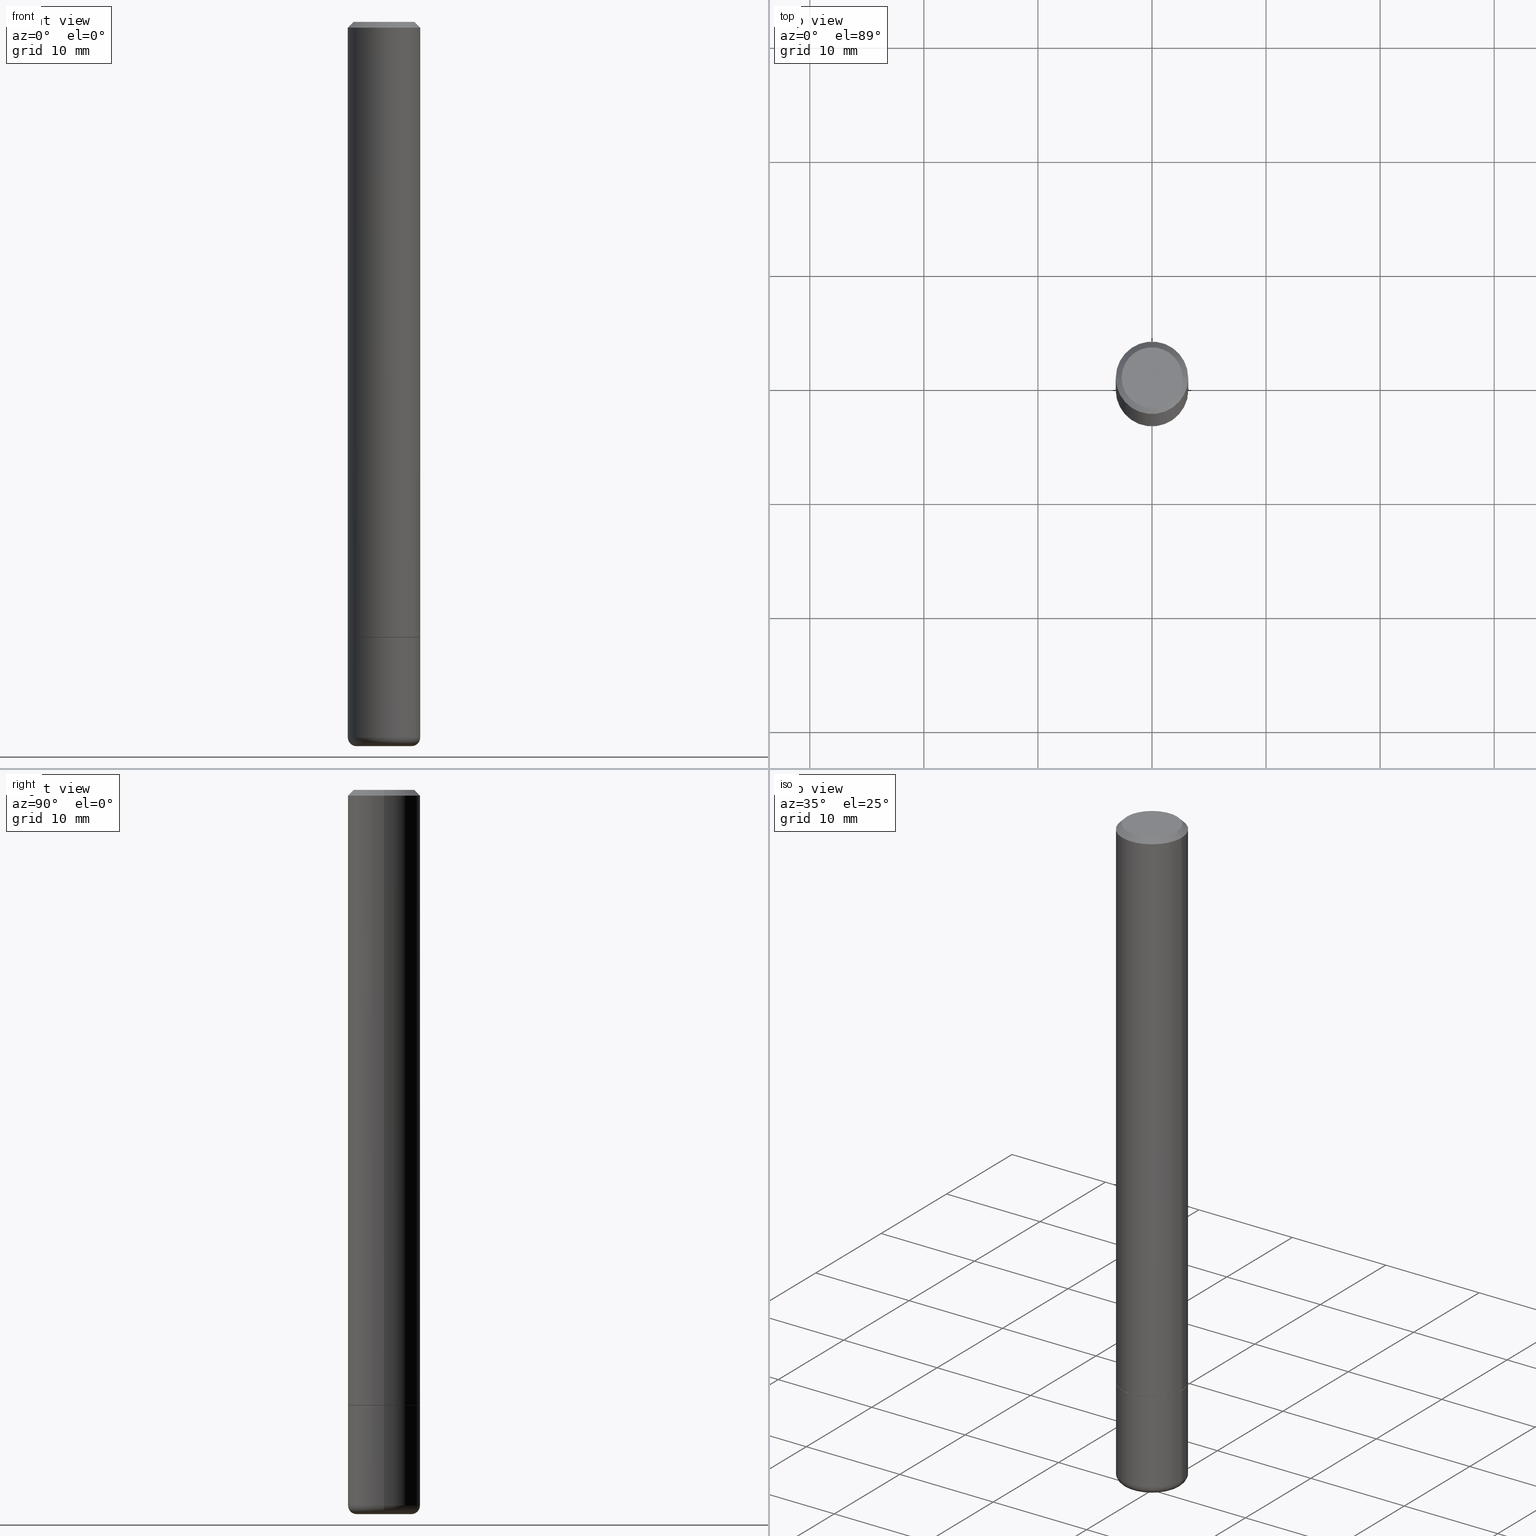
[diagram: canonical four-view strip — front | top / right | iso, engineering-drawing reading convention]
A machine part, canonical four-view strip (front | top / right | iso — engineering-drawing reading convention). The complete STEP part file that produces these views, byte-faithful:
ISO-10303-21;
HEADER;
FILE_DESCRIPTION (( 'STEP AP203' ),
    '1' );
FILE_NAME ('35667.STEP',
    '2022-11-02T20:37:11',
    ( '' ),
    ( '' ),
    'SwSTEP 2.0',
    'SolidWorks 2022',
    '' );
FILE_SCHEMA (( 'CONFIG_CONTROL_DESIGN' ));
ENDSEC;

DATA;
#1 = PERSON_AND_ORGANIZATION ( #249, #268 ) ;
#2 = ORIENTED_EDGE ( 'NONE', *, *, #455, .T. ) ;
#3 = CC_DESIGN_DATE_AND_TIME_ASSIGNMENT ( #456, #269, ( #178 ) ) ;
#4 = DIRECTION ( 'NONE',  ( 0.000000000000000000, 0.000000000000000000, 1.000000000000000000 ) ) ;
#5 = CARTESIAN_POINT ( 'NONE',  ( 0.08140570393504910351, -9.286780778739024445E-15, -2.499883649035179900 ) ) ;
#6 = AXIS2_PLACEMENT_3D ( 'NONE', #353, #237, #123 ) ;
#7 = AXIS2_PLACEMENT_3D ( 'NONE', #89, #276, #239 ) ;
#8 = EDGE_CURVE ( 'NONE', #11, #471, #140, .T. ) ;
#9 = DIRECTION ( 'NONE',  ( 1.000000000000000000, -6.982962677686267499E-15, 4.874400871621268483E-29 ) ) ;
#10 = PERSON_AND_ORGANIZATION ( #249, #268 ) ;
#11 = VERTEX_POINT ( 'NONE', #305 ) ;
#12 = CYLINDRICAL_SURFACE ( 'NONE', #288, 0.1249999999999994865 ) ;
#13 = CARTESIAN_POINT ( 'NONE',  ( 6.113672015462842613E-29, -8.728703347107864943E-15, -2.500000000000000000 ) ) ;
#14 = DIRECTION ( 'NONE',  ( -1.000000000000000000, 6.982962677686265922E-15, 0.000000000000000000 ) ) ;
#15 = ORIENTED_EDGE ( 'NONE', *, *, #216, .F. ) ;
#16 = ADVANCED_FACE ( 'NONE', ( #462 ), #381, .T. ) ;
#17 = CIRCLE ( 'NONE', #29, 0.1249999999999993477 ) ;
#18 = AXIS2_PLACEMENT_3D ( 'NONE', #13, #315, #386 ) ;
#19 = PERSON_AND_ORGANIZATION_ROLE ( 'classification_officer' ) ;
#20 = DIRECTION ( 'NONE',  ( 1.000000000000000000, -6.982962677686265922E-15, 4.876176775795935793E-29 ) ) ;
#21 = DIRECTION ( 'NONE',  ( -1.000000000000000000, 6.982962677686263555E-15, 0.000000000000000000 ) ) ;
#22 = DIRECTION ( 'NONE',  ( 1.000000000000000000, -6.982962677686269077E-15, 0.000000000000000000 ) ) ;
#23 = VERTEX_POINT ( 'NONE', #167 ) ;
#24 = CC_DESIGN_PERSON_AND_ORGANIZATION_ASSIGNMENT ( #113, #191, ( #316 ) ) ;
#25 = CARTESIAN_POINT ( 'NONE',  ( -0.08140570393504910351, -8.159844117556212777E-15, -2.499883649035179900 ) ) ;
#26 = AXIS2_PLACEMENT_3D ( 'NONE', #41, #492, #421 ) ;
#27 = CARTESIAN_POINT ( 'NONE',  ( -0.1249999999999993477, 8.030407079339155047E-16, -0.02000000000000009062 ) ) ;
#28 = CC_DESIGN_PERSON_AND_ORGANIZATION_ASSIGNMENT ( #32, #184, ( #211 ) ) ;
#29 = AXIS2_PLACEMENT_3D ( 'NONE', #80, #143, #342 ) ;
#30 = ORIENTED_EDGE ( 'NONE', *, *, #47, .F. ) ;
#31 = DIRECTION ( 'NONE',  ( 1.000000000000000000, -6.982962677686261189E-15, 0.000000000000000000 ) ) ;
#32 = PERSON_AND_ORGANIZATION ( #249, #268 ) ;
#33 = VERTEX_POINT ( 'NONE', #130 ) ;
#34 = ADVANCED_FACE ( 'NONE', ( #457 ), #246, .T. ) ;
#35 = EDGE_LOOP ( 'NONE', ( #337, #335, #253, #182 ) ) ;
#36 = DIRECTION ( 'NONE',  ( -2.445468806185136597E-29, 3.491481338843145583E-15, 1.000000000000000000 ) ) ;
#37 = DIRECTION ( 'NONE',  ( -1.000000000000000000, 6.982962677686263555E-15, 0.000000000000000000 ) ) ;
#38 = CIRCLE ( 'NONE', #179, 0.1249999999999996253 ) ;
#39 = ORIENTED_EDGE ( 'NONE', *, *, #328, .F. ) ;
#40 = FACE_OUTER_BOUND ( 'NONE', #75, .T. ) ;
#41 = CARTESIAN_POINT ( 'NONE',  ( 7.332110811570533898E-16, 0.1049999999999993577, -3.879481030290301102E-16 ) ) ;
#42 = DIRECTION ( 'NONE',  ( 1.000000000000000000, -6.982962677686269077E-15, 0.000000000000000000 ) ) ;
#43 = DIRECTION ( 'NONE',  ( -2.445468806185136597E-29, 3.491481338843145583E-15, 1.000000000000000000 ) ) ;
#44 = ORIENTED_EDGE ( 'NONE', *, *, #8, .F. ) ;
#45 = CARTESIAN_POINT ( 'NONE',  ( 6.040310744756052718E-29, -8.623962895289896214E-15, -2.470001142308074993 ) ) ;
#46 = DATE_AND_TIME ( #459, #181 ) ;
#47 = EDGE_CURVE ( 'NONE', #156, #212, #177, .T. ) ;
#48 = ORIENTED_EDGE ( 'NONE', *, *, #137, .F. ) ;
#49 = DIRECTION ( 'NONE',  ( -1.000000000000000000, 6.982962677686267499E-15, 0.000000000000000000 ) ) ;
#50 = ORIENTED_EDGE ( 'NONE', *, *, #325, .F. ) ;
#51 = AXIS2_PLACEMENT_3D ( 'NONE', #472, #251, #463 ) ;
#52 = CC_DESIGN_APPROVAL ( #441, ( #178 ) ) ;
#53 = DIRECTION ( 'NONE',  ( -2.445468806185136877E-29, 3.491481338843145188E-15, 1.000000000000000000 ) ) ;
#54 = DIRECTION ( 'NONE',  ( 1.000000000000000000, -6.982962677686265922E-15, 4.876176775795935793E-29 ) ) ;
#55 = DIRECTION ( 'NONE',  ( -2.445468806185136597E-29, 3.491481338843145583E-15, 1.000000000000000000 ) ) ;
#56 = CARTESIAN_POINT ( 'NONE',  ( 0.1249999999999993477, -9.273918764983002075E-16, -0.02000000000000009062 ) ) ;
#57 = ADVANCED_FACE ( 'NONE', ( #296 ), #270, .T. ) ;
#58 = VECTOR ( 'NONE', #332, 39.37007874015748143 ) ;
#59 = LOCAL_TIME ( 16, 37, 11.00000000000000000, #364 ) ;
#60 = CYLINDRICAL_SURFACE ( 'NONE', #226, 0.1249999999999994865 ) ;
#61 = ORIENTED_EDGE ( 'NONE', *, *, #284, .T. ) ;
#62 = EDGE_CURVE ( 'NONE', #471, #11, #111, .T. ) ;
#63 = EDGE_CURVE ( 'NONE', #33, #485, #349, .T. ) ;
#64 = VECTOR ( 'NONE', #217, 39.37007874015748854 ) ;
#65 = ORIENTED_EDGE ( 'NONE', *, *, #47, .T. ) ;
#66 = ORIENTED_EDGE ( 'NONE', *, *, #151, .F. ) ;
#67 = CARTESIAN_POINT ( 'NONE',  ( 0.000000000000000000, 0.000000000000000000, 0.000000000000000000 ) ) ;
#68 = CONICAL_SURFACE ( 'NONE', #394, 0.09473820393504912840, 1.562069680534929894 ) ;
#69 = EDGE_LOOP ( 'NONE', ( #346, #187, #408, #483 ) ) ;
#70 = EDGE_CURVE ( 'NONE', #405, #116, #138, .T. ) ;
#71 = SECURITY_CLASSIFICATION_LEVEL ( 'unclassified' ) ;
#72 = ORIENTED_EDGE ( 'NONE', *, *, #131, .F. ) ;
#73 = DIRECTION ( 'NONE',  ( 1.000000000000000000, -6.982962677686269077E-15, 0.000000000000000000 ) ) ;
#74 =( LENGTH_UNIT ( ) NAMED_UNIT ( * ) SI_UNIT ( $, .METRE. ) );
#75 = EDGE_LOOP ( 'NONE', ( #48, #302, #372, #30 ) ) ;
#76 = DIRECTION ( 'NONE',  ( -2.445468806185136877E-29, 3.491481338843145188E-15, 1.000000000000000000 ) ) ;
#77 = CIRCLE ( 'NONE', #362, 0.1249999999999996253 ) ;
#78 = VERTEX_POINT ( 'NONE', #417 ) ;
#79 = VECTOR ( 'NONE', #308, 39.37007874015748143 ) ;
#80 = CARTESIAN_POINT ( 'NONE',  ( 4.890937612370295054E-31, -6.982962677686322424E-17, -0.02000000000000009062 ) ) ;
#81 = COORDINATED_UNIVERSAL_TIME_OFFSET ( 5, 0, .BEHIND. ) ;
#82 = CARTESIAN_POINT ( 'NONE',  ( 5.196621213143416389E-29, -7.419397845041685201E-15, -2.125000000000000444 ) ) ;
#83 = EDGE_CURVE ( 'NONE', #471, #23, #427, .T. ) ;
#84 = DIRECTION ( 'NONE',  ( -2.445468806185136597E-29, 3.491481338843145583E-15, 1.000000000000000000 ) ) ;
#85 = PERSON_AND_ORGANIZATION ( #249, #268 ) ;
#86 = DIRECTION ( 'NONE',  ( -1.000000000000000000, 6.982962677686267499E-15, 0.000000000000000000 ) ) ;
#87 = LINE ( 'NONE', #387, #206 ) ;
#88 = FACE_OUTER_BOUND ( 'NONE', #454, .T. ) ;
#89 = CARTESIAN_POINT ( 'NONE',  ( 5.196621213143416389E-29, -7.419397845041685201E-15, -2.125000000000000444 ) ) ;
#90 = DIRECTION ( 'NONE',  ( 2.445468806185136597E-29, -3.491481338843145583E-15, -1.000000000000000000 ) ) ;
#91 = AXIS2_PLACEMENT_3D ( 'NONE', #474, #285, #434 ) ;
#92 = CARTESIAN_POINT ( 'NONE',  ( 4.890937612370295054E-31, -6.982962677686322424E-17, -0.02000000000000009062 ) ) ;
#93 = DIRECTION ( 'NONE',  ( 2.445468806185136597E-29, -3.491481338843145583E-15, -1.000000000000000000 ) ) ;
#94 = CC_DESIGN_PERSON_AND_ORGANIZATION_ASSIGNMENT ( #10, #19, ( #163 ) ) ;
#95 = DIRECTION ( 'NONE',  ( -2.445468806185136597E-29, 3.491481338843145583E-15, 1.000000000000000000 ) ) ;
#96 = CARTESIAN_POINT ( 'NONE',  ( 5.196621213143416389E-29, -7.419397845041685201E-15, -2.125000000000000444 ) ) ;
#97 = DIRECTION ( 'NONE',  ( -2.445468806185136597E-29, 3.491481338843145583E-15, 1.000000000000000000 ) ) ;
#98 = ORIENTED_EDGE ( 'NONE', *, *, #223, .F. ) ;
#99 = CONICAL_SURFACE ( 'NONE', #7, 0.1239999999999996244, 0.7853981633974141952 ) ;
#100 = MANIFOLD_SOLID_BREP ( 'Body-Move/Copy2[2]', #409 ) ;
#101 = LINE ( 'NONE', #400, #102 ) ;
#102 = VECTOR ( 'NONE', #470, 39.37007874015748143 ) ;
#103 = LOCAL_TIME ( 16, 37, 11.00000000000000000, #81 ) ;
#104 = ADVANCED_FACE ( 'NONE', ( #274 ), #68, .F. ) ;
#105 = LINE ( 'NONE', #404, #443 ) ;
#106 = VERTEX_POINT ( 'NONE', #391 ) ;
#107 = DIRECTION ( 'NONE',  ( -2.445468806185136597E-29, 3.491481338843145583E-15, 1.000000000000000000 ) ) ;
#108 = ORIENTED_EDGE ( 'NONE', *, *, #119, .F. ) ;
#109 = CC_DESIGN_PERSON_AND_ORGANIZATION_ASSIGNMENT ( #1, #162, ( #178 ) ) ;
#110 = DIRECTION ( 'NONE',  ( -1.000000000000000000, 7.105427357601001859E-15, 0.000000000000000000 ) ) ;
#111 = CIRCLE ( 'NONE', #240, 0.1239999999999996244 ) ;
#112 = CC_DESIGN_APPROVAL ( #180, ( #163 ) ) ;
#113 = PERSON_AND_ORGANIZATION ( #249, #268 ) ;
#114 = ORIENTED_EDGE ( 'NONE', *, *, #83, .F. ) ;
#115 = PERSON_AND_ORGANIZATION ( #249, #268 ) ;
#116 = VERTEX_POINT ( 'NONE', #56 ) ;
#117 =( CONVERSION_BASED_UNIT ( 'INCH', #159 ) LENGTH_UNIT ( ) NAMED_UNIT ( #278 ) );
#118 = VERTEX_POINT ( 'NONE', #200 ) ;
#119 = EDGE_CURVE ( 'NONE', #452, #405, #359, .T. ) ;
#120 = AXIS2_PLACEMENT_3D ( 'NONE', #257, #345, #31 ) ;
#121 = CARTESIAN_POINT ( 'NONE',  ( -0.1249999999999993477, 8.030407079339155047E-16, -0.02000000000000009062 ) ) ;
#122 = VECTOR ( 'NONE', #275, 39.37007874015748854 ) ;
#123 = DIRECTION ( 'NONE',  ( -1.000000000000000000, 6.982962677686265922E-15, 0.000000000000000000 ) ) ;
#124 = CARTESIAN_POINT ( 'NONE',  ( 6.113672015462842613E-29, -8.728703347107864943E-15, -2.500000000000000000 ) ) ;
#125 = CARTESIAN_POINT ( 'NONE',  ( 0.000000000000000000, 0.000000000000000000, 0.000000000000000000 ) ) ;
#126 = DIRECTION ( 'NONE',  ( 1.000000000000000000, -6.982962677686266711E-15, 4.876176775795935793E-29 ) ) ;
#127 = CARTESIAN_POINT ( 'NONE',  ( -0.09473820393504912840, -8.067150004878386191E-15, -2.500000000000000000 ) ) ;
#128 = DIRECTION ( 'NONE',  ( 1.000000000000000000, -6.982962677686269077E-15, 0.000000000000000000 ) ) ;
#129 = CALENDAR_DATE ( 2022, 2, 11 ) ;
#130 = CARTESIAN_POINT ( 'NONE',  ( 6.106435626793264299E-29, -8.718371701929425383E-15, -2.497040899212750187 ) ) ;
#131 = EDGE_CURVE ( 'NONE', #485, #201, #407, .T. ) ;
#132 = FACE_OUTER_BOUND ( 'NONE', #322, .T. ) ;
#133 = FACE_OUTER_BOUND ( 'NONE', #368, .T. ) ;
#134 = DESIGN_CONTEXT ( 'detailed design', #375, 'design' ) ;
#135 = CARTESIAN_POINT ( 'NONE',  ( 0.09473820393504912840, -9.378654605516740396E-15, -2.500000000000000000 ) ) ;
#136 = EDGE_LOOP ( 'NONE', ( #366, #65, #171, #445 ) ) ;
#137 = EDGE_CURVE ( 'NONE', #379, #156, #480, .T. ) ;
#138 = CIRCLE ( 'NONE', #419, 0.1249999999999993477 ) ;
#139 = VECTOR ( 'NONE', #329, 39.37007874015748143 ) ;
#140 = CIRCLE ( 'NONE', #198, 0.1239999999999996244 ) ;
#141 = CARTESIAN_POINT ( 'NONE',  ( 6.113387482807804113E-29, -8.728297109885438444E-15, -2.499883649035179900 ) ) ;
#142 = CARTESIAN_POINT ( 'NONE',  ( 0.1250000000000000278, -9.496833230000679553E-15, -2.470001142308074993 ) ) ;
#143 = DIRECTION ( 'NONE',  ( -2.445468806185136597E-29, 3.491481338843145583E-15, 1.000000000000000000 ) ) ;
#144 = CLOSED_SHELL ( 'NONE', ( #307, #365, #57, #238, #214, #250, #16, #273, #104 ) ) ;
#145 = TOROIDAL_SURFACE ( 'NONE', #190, 0.09500000000000018152, 0.02999999999999982542 ) ;
#146 = DIRECTION ( 'NONE',  ( -0.7071067811865232589, 7.493145998870265808E-15, 0.7071067811865715536 ) ) ;
#147 = EDGE_LOOP ( 'NONE', ( #221, #437, #66, #98 ) ) ;
#148 = CARTESIAN_POINT ( 'NONE',  ( -0.1249999999999994865, 8.881784197001215839E-16, -6.148668862818606303E-30 ) ) ;
#149 = EDGE_LOOP ( 'NONE', ( #247, #61, #385, #411 ) ) ;
#150 = CARTESIAN_POINT ( 'NONE',  ( 6.113387482807804113E-29, -8.728297109885438444E-15, -2.499883649035179900 ) ) ;
#151 = EDGE_CURVE ( 'NONE', #118, #78, #38, .T. ) ;
#152 = EDGE_CURVE ( 'NONE', #222, #106, #204, .T. ) ;
#153 =( NAMED_UNIT ( * ) PLANE_ANGLE_UNIT ( ) SI_UNIT ( $, .RADIAN. ) );
#154 = ORIENTED_EDGE ( 'NONE', *, *, #70, .T. ) ;
#155 = AXIS2_PLACEMENT_3D ( 'NONE', #169, #84, #357 ) ;
#156 = VERTEX_POINT ( 'NONE', #203 ) ;
#157 = DIRECTION ( 'NONE',  ( 1.000000000000000000, -6.982962677686261189E-15, 0.000000000000000000 ) ) ;
#158 = ORIENTED_EDGE ( 'NONE', *, *, #399, .F. ) ;
#159 = LENGTH_MEASURE_WITH_UNIT ( LENGTH_MEASURE( 0.02539999999999999897 ), #74 );
#160 = DIRECTION ( 'NONE',  ( -2.445468806185136597E-29, 3.491481338843145583E-15, 1.000000000000000000 ) ) ;
#161 = ORIENTED_EDGE ( 'NONE', *, *, #446, .T. ) ;
#162 = PERSON_AND_ORGANIZATION_ROLE ( 'creator' ) ;
#163 = SECURITY_CLASSIFICATION ( '', '', #71 ) ;
#164 = DIRECTION ( 'NONE',  ( 0.9993908270190955401, -6.978169709227551743E-15, -0.03489949670250441088 ) ) ;
#165 = FACE_OUTER_BOUND ( 'NONE', #248, .T. ) ;
#166 = ADVANCED_FACE ( 'NONE', ( #468 ), #175, .F. ) ;
#167 = CARTESIAN_POINT ( 'NONE',  ( 0.1249999999999996253, -8.288776698413623955E-15, -2.124000000000000554 ) ) ;
#168 = FACE_OUTER_BOUND ( 'NONE', #149, .T. ) ;
#169 = CARTESIAN_POINT ( 'NONE',  ( 6.113387482807804113E-29, -8.728297109885438444E-15, -2.499883649035179900 ) ) ;
#170 = APPROVAL_ROLE ( '' ) ;
#171 = ORIENTED_EDGE ( 'NONE', *, *, #223, .T. ) ;
#172 = APPROVAL_DATE_TIME ( #363, #180 ) ;
#173 = ORIENTED_EDGE ( 'NONE', *, *, #478, .T. ) ;
#174 = EDGE_CURVE ( 'NONE', #156, #78, #101, .T. ) ;
#175 = PLANE ( 'NONE',  #326 ) ;
#176 = VECTOR ( 'NONE', #356, 39.37007874015748854 ) ;
#177 = CIRCLE ( 'NONE', #120, 0.1250000000000000278 ) ;
#178 = PRODUCT_DEFINITION ( 'UNKNOWN', '', #211, #134 ) ;
#179 = AXIS2_PLACEMENT_3D ( 'NONE', #96, #324, #22 ) ;
#180 = APPROVAL ( #469, 'UNSPECIFIED' ) ;
#181 = LOCAL_TIME ( 16, 37, 11.00000000000000000, #410 ) ;
#182 = ORIENTED_EDGE ( 'NONE', *, *, #383, .F. ) ;
#183 = DIRECTION ( 'NONE',  ( -2.445468806185136597E-29, 3.491481338843145583E-15, 1.000000000000000000 ) ) ;
#184 = PERSON_AND_ORGANIZATION_ROLE ( 'design_supplier' ) ;
#185 = ORIENTED_EDGE ( 'NONE', *, *, #233, .F. ) ;
#186 = APPROVAL_DATE_TIME ( #231, #358 ) ;
#187 = ORIENTED_EDGE ( 'NONE', *, *, #425, .T. ) ;
#188 = AXIS2_PLACEMENT_3D ( 'NONE', #428, #93, #49 ) ;
#189 = LINE ( 'NONE', #416, #458 ) ;
#190 = AXIS2_PLACEMENT_3D ( 'NONE', #280, #55, #199 ) ;
#191 = PERSON_AND_ORGANIZATION_ROLE ( 'design_owner' ) ;
#192 = ORIENTED_EDGE ( 'NONE', *, *, #63, .F. ) ;
#193 = ADVANCED_FACE ( 'NONE', ( #397 ), #60, .T. ) ;
#194 = DIRECTION ( 'NONE',  ( 1.000000000000000000, -6.982962677686267499E-15, 0.000000000000000000 ) ) ;
#195 = ORIENTED_EDGE ( 'NONE', *, *, #8, .T. ) ;
#196 = DIRECTION ( 'NONE',  ( 1.000000000000000000, -6.982962677686266711E-15, 4.876176775795935793E-29 ) ) ;
#197 = CIRCLE ( 'NONE', #380, 0.1249999999999996253 ) ;
#198 = AXIS2_PLACEMENT_3D ( 'NONE', #82, #160, #194 ) ;
#199 = DIRECTION ( 'NONE',  ( 1.000000000000000000, -6.982962677686262766E-15, 4.883557194083111780E-29 ) ) ;
#200 = CARTESIAN_POINT ( 'NONE',  ( 0.1249999999999996253, -8.292268179752466962E-15, -2.125000000000000444 ) ) ;
#201 = VERTEX_POINT ( 'NONE', #25 ) ;
#202 = ORIENTED_EDGE ( 'NONE', *, *, #62, .T. ) ;
#203 = CARTESIAN_POINT ( 'NONE',  ( -0.1250000000000000278, -7.133501950465665475E-15, -2.470001142308074993 ) ) ;
#204 = CIRCLE ( 'NONE', #351, 0.1049999999999993577 ) ;
#205 = AXIS2_PLACEMENT_3D ( 'NONE', #298, #448, #110 ) ;
#206 = VECTOR ( 'NONE', #53, 39.37007874015748143 ) ;
#207 = CARTESIAN_POINT ( 'NONE',  ( 0.000000000000000000, 0.000000000000000000, 0.000000000000000000 ) ) ;
#208 = ORIENTED_EDGE ( 'NONE', *, *, #271, .F. ) ;
#209 = CARTESIAN_POINT ( 'NONE',  ( 5.196621213143416389E-29, -7.419397845041685201E-15, -2.125000000000000444 ) ) ;
#210 = CONICAL_SURFACE ( 'NONE', #281, 0.08140570393504910351, 1.535889741755006588 ) ;
#211 = PRODUCT_DEFINITION_FORMATION_WITH_SPECIFIED_SOURCE ( 'ANY', '', #316, .NOT_KNOWN. ) ;
#212 = VERTEX_POINT ( 'NONE', #142 ) ;
#213 = LINE ( 'NONE', #369, #139 ) ;
#214 = ADVANCED_FACE ( 'NONE', ( #293 ), #210, .F. ) ;
#215 = ORIENTED_EDGE ( 'NONE', *, *, #455, .F. ) ;
#216 = EDGE_CURVE ( 'NONE', #23, #452, #475, .T. ) ;
#217 = DIRECTION ( 'NONE',  ( 0.7071067811865232589, -2.468850131082003836E-15, 0.7071067811865715536 ) ) ;
#218 = AXIS2_PLACEMENT_3D ( 'NONE', #45, #350, #157 ) ;
#219 = AXIS2_PLACEMENT_3D ( 'NONE', #92, #360, #14 ) ;
#220 = APPLICATION_PROTOCOL_DEFINITION ( 'international standard', 'config_control_design', 1994, #234 ) ;
#221 = ORIENTED_EDGE ( 'NONE', *, *, #271, .T. ) ;
#222 = VERTEX_POINT ( 'NONE', #378 ) ;
#223 = EDGE_CURVE ( 'NONE', #212, #118, #189, .T. ) ;
#224 = ORIENTED_EDGE ( 'NONE', *, *, #367, .F. ) ;
#225 = ADVANCED_FACE ( 'NONE', ( #343 ), #227, .F. ) ;
#226 = AXIS2_PLACEMENT_3D ( 'NONE', #207, #401, #473 ) ;
#227 = PLANE ( 'NONE',  #26 ) ;
#228 = CARTESIAN_POINT ( 'NONE',  ( 0.1239999999999996244, -8.285285217074779370E-15, -2.125000000000000444 ) ) ;
#229 = ORIENTED_EDGE ( 'NONE', *, *, #137, .T. ) ;
#230 = ORIENTED_EDGE ( 'NONE', *, *, #83, .T. ) ;
#231 = DATE_AND_TIME ( #260, #103 ) ;
#232 = CARTESIAN_POINT ( 'NONE',  ( 5.196621213143416389E-29, -7.419397845041685201E-15, -2.125000000000000444 ) ) ;
#233 = EDGE_CURVE ( 'NONE', #116, #405, #17, .T. ) ;
#234 = APPLICATION_CONTEXT ( 'configuration controlled 3d designs of mechanical parts and assemblies' ) ;
#235 = CARTESIAN_POINT ( 'NONE',  ( -0.09473820393504912840, -7.895666198323776938E-15, -2.500000000000000000 ) ) ;
#236 = CALENDAR_DATE ( 2022, 2, 11 ) ;
#237 = DIRECTION ( 'NONE',  ( 2.445468806185136597E-29, -3.491481338843145583E-15, -1.000000000000000000 ) ) ;
#238 = ADVANCED_FACE ( 'NONE', ( #354 ), #479, .F. ) ;
#239 = DIRECTION ( 'NONE',  ( 1.000000000000000000, -6.982962677686267499E-15, 0.000000000000000000 ) ) ;
#240 = AXIS2_PLACEMENT_3D ( 'NONE', #232, #406, #279 ) ;
#241 = APPROVAL_PERSON_ORGANIZATION ( #85, #180, #170 ) ;
#242 = DIRECTION ( 'NONE',  ( 1.000000000000000000, -6.982962677686265922E-15, 0.000000000000000000 ) ) ;
#243 = EDGE_LOOP ( 'NONE', ( #261, #44 ) ) ;
#244 = LINE ( 'NONE', #135, #176 ) ;
#245 = DIRECTION ( 'NONE',  ( -2.438088387897960049E-29, 3.491481338843145188E-15, 1.000000000000000000 ) ) ;
#246 = CONICAL_SURFACE ( 'NONE', #6, 0.1249999999999993477, 0.7853981633974469467 ) ;
#247 = ORIENTED_EDGE ( 'NONE', *, *, #367, .T. ) ;
#248 = EDGE_LOOP ( 'NONE', ( #300, #229, #208, #418 ) ) ;
#249 = PERSON ( 'UNSPECIFIED', 'UNSPECIFIED', 'UNSPECIFIED', ('UNSPECIFIED'), ('UNSPECIFIED'), ('UNSPECIFIED') ) ;
#250 = ADVANCED_FACE ( 'NONE', ( #292 ), #435, .F. ) ;
#251 = DIRECTION ( 'NONE',  ( 2.438088387897960049E-29, -3.491481338843145188E-15, -1.000000000000000000 ) ) ;
#252 = CARTESIAN_POINT ( 'NONE',  ( -0.1249999999999996253, -2.854689575539726725E-15, -2.124000000000000554 ) ) ;
#253 = ORIENTED_EDGE ( 'NONE', *, *, #395, .T. ) ;
#254 = MANIFOLD_SOLID_BREP ( 'Body-Move/Copy2[1]', #144 ) ;
#255 = DIRECTION ( 'NONE',  ( 1.000000000000000000, -6.982962677686263555E-15, 0.000000000000000000 ) ) ;
#256 = EDGE_LOOP ( 'NONE', ( #303, #415 ) ) ;
#257 = CARTESIAN_POINT ( 'NONE',  ( 6.040310744756052718E-29, -8.623962895289896214E-15, -2.470001142308074993 ) ) ;
#258 = AXIS2_PLACEMENT_3D ( 'NONE', #124, #36, #412 ) ;
#259 = APPROVAL_PERSON_ORGANIZATION ( #115, #441, #490 ) ;
#260 = CALENDAR_DATE ( 2022, 2, 11 ) ;
#261 = ORIENTED_EDGE ( 'NONE', *, *, #62, .F. ) ;
#262 = EDGE_CURVE ( 'NONE', #379, #287, #301, .T. ) ;
#263 = APPROVAL_STATUS ( 'not_yet_approved' ) ;
#264 = ORIENTED_EDGE ( 'NONE', *, *, #425, .F. ) ;
#265 = ORIENTED_EDGE ( 'NONE', *, *, #446, .F. ) ;
#266 = CIRCLE ( 'NONE', #294, 0.02999999999999981501 ) ;
#267 = CARTESIAN_POINT ( 'NONE',  ( 5.194175744337230786E-29, -7.415906363702842194E-15, -2.124000000000000554 ) ) ;
#268 = ORGANIZATION ( 'UNSPECIFIED', 'UNSPECIFIED', '' ) ;
#269 = DATE_TIME_ROLE ( 'creation_date' ) ;
#270 = CYLINDRICAL_SURFACE ( 'NONE', #402, 0.1249999999999998335 ) ;
#271 = EDGE_CURVE ( 'NONE', #212, #156, #438, .T. ) ;
#272 = APPROVAL_ROLE ( '' ) ;
#273 = ADVANCED_FACE ( 'NONE', ( #40 ), #389, .T. ) ;
#274 = FACE_OUTER_BOUND ( 'NONE', #35, .T. ) ;
#275 = DIRECTION ( 'NONE',  ( -0.9999619230641714207, 6.952228252019186602E-15, -0.008726535498369011531 ) ) ;
#276 = DIRECTION ( 'NONE',  ( -2.445468806185136597E-29, 3.491481338843145583E-15, 1.000000000000000000 ) ) ;
#277 = CARTESIAN_POINT ( 'NONE',  ( 6.113387482807804113E-29, -8.728297109885438444E-15, -2.499883649035179900 ) ) ;
#278 = DIMENSIONAL_EXPONENTS ( 1.000000000000000000, 0.000000000000000000, 0.000000000000000000, 0.000000000000000000, 0.000000000000000000, 0.000000000000000000, 0.000000000000000000 ) ;
#279 = DIRECTION ( 'NONE',  ( 1.000000000000000000, -6.982962677686267499E-15, 0.000000000000000000 ) ) ;
#280 = CARTESIAN_POINT ( 'NONE',  ( 6.040310744756052718E-29, -8.623962895289896214E-15, -2.470001142308074993 ) ) ;
#281 = AXIS2_PLACEMENT_3D ( 'NONE', #277, #451, #37 ) ;
#282 = COORDINATED_UNIVERSAL_TIME_OFFSET ( 5, 0, .BEHIND. ) ;
#283 = CARTESIAN_POINT ( 'NONE',  ( 0.09473820393504912840, -9.390256689337342116E-15, -2.500000000000000000 ) ) ;
#284 = EDGE_CURVE ( 'NONE', #485, #287, #244, .T. ) ;
#285 = DIRECTION ( 'NONE',  ( -2.445468806185136597E-29, 3.491481338843145583E-15, 1.000000000000000000 ) ) ;
#286 = DATE_TIME_ROLE ( 'classification_date' ) ;
#287 = VERTEX_POINT ( 'NONE', #283 ) ;
#288 = AXIS2_PLACEMENT_3D ( 'NONE', #388, #393, #54 ) ;
#289 = ADVANCED_FACE ( 'NONE', ( #465 ), #449, .T. ) ;
#290 = CONICAL_SURFACE ( 'NONE', #219, 0.1249999999999993477, 0.7853981633974469467 ) ;
#291 = DIRECTION ( 'NONE',  ( 1.000000000000000000, -6.982962677686267499E-15, 0.000000000000000000 ) ) ;
#292 = FACE_OUTER_BOUND ( 'NONE', #256, .T. ) ;
#293 = FACE_OUTER_BOUND ( 'NONE', #491, .T. ) ;
#294 = AXIS2_PLACEMENT_3D ( 'NONE', #431, #312, #426 ) ;
#295 = LINE ( 'NONE', #444, #481 ) ;
#296 = FACE_OUTER_BOUND ( 'NONE', #147, .T. ) ;
#297 = EDGE_LOOP ( 'NONE', ( #341, #450 ) ) ;
#298 = CARTESIAN_POINT ( 'NONE',  ( -0.09500000000000018152, -7.948947296317799649E-15, -2.470001142308074993 ) ) ;
#299 =( NAMED_UNIT ( * ) SI_UNIT ( $, .STERADIAN. ) SOLID_ANGLE_UNIT ( ) );
#300 = ORIENTED_EDGE ( 'NONE', *, *, #383, .T. ) ;
#301 = CIRCLE ( 'NONE', #258, 0.09473820393504912840 ) ;
#302 = ORIENTED_EDGE ( 'NONE', *, *, #262, .T. ) ;
#303 = ORIENTED_EDGE ( 'NONE', *, *, #151, .T. ) ;
#304 = MECHANICAL_CONTEXT ( 'NONE', #234, 'mechanical' ) ;
#305 = CARTESIAN_POINT ( 'NONE',  ( -0.1239999999999996244, -6.533026398350942519E-15, -2.125000000000000444 ) ) ;
#306 = ADVANCED_FACE ( 'NONE', ( #88 ), #12, .T. ) ;
#307 = ADVANCED_FACE ( 'NONE', ( #168 ), #487, .F. ) ;
#308 = DIRECTION ( 'NONE',  ( -0.7071067811865465735, 2.468850131082246805E-15, -0.7071067811865484609 ) ) ;
#309 = CARTESIAN_POINT ( 'NONE',  ( 4.890937612370295054E-31, -6.982962677686322424E-17, -0.02000000000000009062 ) ) ;
#310 = DIRECTION ( 'NONE',  ( -0.9993908270190955401, 6.856857904024544637E-15, -0.03489949670250441088 ) ) ;
#311 = LINE ( 'NONE', #127, #122 ) ;
#312 = DIRECTION ( 'NONE',  ( -6.982962677686266711E-15, -1.000000000000000000, 3.491481338843145583E-15 ) ) ;
#313 = ADVANCED_BREP_SHAPE_REPRESENTATION ( '35667', ( #254, #100, #439 ), #476 ) ;
#314 = DIRECTION ( 'NONE',  ( -2.445468806185136597E-29, 3.491481338843145583E-15, 1.000000000000000000 ) ) ;
#315 = DIRECTION ( 'NONE',  ( -2.445468806185136597E-29, 3.491481338843145583E-15, 1.000000000000000000 ) ) ;
#316 = PRODUCT ( '35667', '35667', '', ( #304 ) ) ;
#317 = DIRECTION ( 'NONE',  ( 1.000000000000000000, -6.982962677686267499E-15, 4.874400871621268483E-29 ) ) ;
#318 = AXIS2_PLACEMENT_3D ( 'NONE', #150, #107, #255 ) ;
#319 = EDGE_CURVE ( 'NONE', #287, #212, #266, .T. ) ;
#320 = ORIENTED_EDGE ( 'NONE', *, *, #399, .T. ) ;
#321 = DATE_AND_TIME ( #236, #59 ) ;
#322 = EDGE_LOOP ( 'NONE', ( #264, #50, #173, #154 ) ) ;
#323 = UNCERTAINTY_MEASURE_WITH_UNIT (LENGTH_MEASURE( 1.000000000000000082E-05 ), #117, 'distance_accuracy_value', 'NONE');
#324 = DIRECTION ( 'NONE',  ( -2.445468806185136597E-29, 3.491481338843145583E-15, 1.000000000000000000 ) ) ;
#325 = EDGE_CURVE ( 'NONE', #106, #222, #330, .T. ) ;
#326 = AXIS2_PLACEMENT_3D ( 'NONE', #436, #245, #20 ) ;
#327 = APPROVAL_PERSON_ORGANIZATION ( #422, #358, #272 ) ;
#328 = EDGE_CURVE ( 'NONE', #452, #23, #77, .T. ) ;
#329 = DIRECTION ( 'NONE',  ( 0.7071067811865465735, -7.319954787623252890E-15, -0.7071067811865484609 ) ) ;
#330 = CIRCLE ( 'NONE', #466, 0.1049999999999993577 ) ;
#331 = EDGE_LOOP ( 'NONE', ( #202, #161, #15, #114 ) ) ;
#332 = DIRECTION ( 'NONE',  ( -2.445468806185136877E-29, 3.491481338843145188E-15, 1.000000000000000000 ) ) ;
#333 = PRODUCT_RELATED_PRODUCT_CATEGORY ( 'detail', '', ( #316 ) ) ;
#334 = CARTESIAN_POINT ( 'NONE',  ( 0.08140570393504910351, -9.286780778739024445E-15, -2.499883649035179900 ) ) ;
#335 = ORIENTED_EDGE ( 'NONE', *, *, #131, .T. ) ;
#336 = DIRECTION ( 'NONE',  ( 1.000000000000000000, 0.000000000000000000, 0.000000000000000000 ) ) ;
#337 = ORIENTED_EDGE ( 'NONE', *, *, #284, .F. ) ;
#338 = AXIS2_PLACEMENT_3D ( 'NONE', #267, #413, #73 ) ;
#339 = CC_DESIGN_APPROVAL ( #358, ( #211 ) ) ;
#340 = COORDINATED_UNIVERSAL_TIME_OFFSET ( 5, 0, .BEHIND. ) ;
#341 = ORIENTED_EDGE ( 'NONE', *, *, #325, .T. ) ;
#342 = DIRECTION ( 'NONE',  ( 1.000000000000000000, -6.982962677686265922E-15, 0.000000000000000000 ) ) ;
#343 = FACE_OUTER_BOUND ( 'NONE', #297, .T. ) ;
#344 = APPLICATION_PROTOCOL_DEFINITION ( 'international standard', 'config_control_design', 1994, #375 ) ;
#345 = DIRECTION ( 'NONE',  ( -2.445468806185136597E-29, 3.491481338843145583E-15, 1.000000000000000000 ) ) ;
#346 = ORIENTED_EDGE ( 'NONE', *, *, #152, .F. ) ;
#347 = ADVANCED_FACE ( 'NONE', ( #133 ), #99, .T. ) ;
#348 = APPROVAL_STATUS ( 'not_yet_approved' ) ;
#349 = LINE ( 'NONE', #5, #442 ) ;
#350 = DIRECTION ( 'NONE',  ( -2.445468806185136597E-29, 3.491481338843145583E-15, 1.000000000000000000 ) ) ;
#351 = AXIS2_PLACEMENT_3D ( 'NONE', #440, #97, #317 ) ;
#352 = DIRECTION ( 'NONE',  ( -2.445468806185136597E-29, 3.491481338843145583E-15, 1.000000000000000000 ) ) ;
#353 = CARTESIAN_POINT ( 'NONE',  ( 4.890937612370295054E-31, -6.982962677686322424E-17, -0.02000000000000009062 ) ) ;
#354 = FACE_OUTER_BOUND ( 'NONE', #374, .T. ) ;
#355 = PRODUCT_DEFINITION_SHAPE ( 'NONE', 'NONE',  #178 ) ;
#356 = DIRECTION ( 'NONE',  ( 0.9999619230641714207, -6.890705306874825328E-15, -0.008726535498369011531 ) ) ;
#357 = DIRECTION ( 'NONE',  ( 1.000000000000000000, -6.982962677686263555E-15, 0.000000000000000000 ) ) ;
#358 = APPROVAL ( #348, 'UNSPECIFIED' ) ;
#359 = LINE ( 'NONE', #148, #58 ) ;
#360 = DIRECTION ( 'NONE',  ( 2.445468806185136597E-29, -3.491481338843145583E-15, -1.000000000000000000 ) ) ;
#361 = DIRECTION ( 'NONE',  ( 2.445468806185136597E-29, -3.491481338843145583E-15, -1.000000000000000000 ) ) ;
#362 = AXIS2_PLACEMENT_3D ( 'NONE', #464, #95, #128 ) ;
#363 = DATE_AND_TIME ( #129, #396 ) ;
#364 = COORDINATED_UNIVERSAL_TIME_OFFSET ( 5, 0, .BEHIND. ) ;
#365 = ADVANCED_FACE ( 'NONE', ( #165 ), #145, .T. ) ;
#366 = ORIENTED_EDGE ( 'NONE', *, *, #174, .F. ) ;
#367 = EDGE_CURVE ( 'NONE', #201, #485, #467, .T. ) ;
#368 = EDGE_LOOP ( 'NONE', ( #265, #195, #230, #39 ) ) ;
#369 = CARTESIAN_POINT ( 'NONE',  ( 0.1249999999999993477, -9.273918764983002075E-16, -0.02000000000000009062 ) ) ;
#370 = AXIS2_PLACEMENT_3D ( 'NONE', #209, #433, #291 ) ;
#371 = ORIENTED_EDGE ( 'NONE', *, *, #119, .T. ) ;
#372 = ORIENTED_EDGE ( 'NONE', *, *, #319, .T. ) ;
#373 = PERSON_AND_ORGANIZATION_ROLE ( 'creator' ) ;
#374 = EDGE_LOOP ( 'NONE', ( #215, #382, #224 ) ) ;
#375 = APPLICATION_CONTEXT ( 'configuration controlled 3d designs of mechanical parts and assemblies' ) ;
#376 = APPROVAL_DATE_TIME ( #46, #441 ) ;
#377 = EDGE_LOOP ( 'NONE', ( #488, #371, #185, #158 ) ) ;
#378 = CARTESIAN_POINT ( 'NONE',  ( 0.1049999999999993577, -8.238720831321533257E-16, -4.268512490099867088E-17 ) ) ;
#379 = VERTEX_POINT ( 'NONE', #235 ) ;
#380 = AXIS2_PLACEMENT_3D ( 'NONE', #484, #486, #42 ) ;
#381 = CYLINDRICAL_SURFACE ( 'NONE', #390, 0.1249999999999998335 ) ;
#382 = ORIENTED_EDGE ( 'NONE', *, *, #63, .T. ) ;
#383 = EDGE_CURVE ( 'NONE', #287, #379, #403, .T. ) ;
#384 = PERSON_AND_ORGANIZATION ( #249, #268 ) ;
#385 = ORIENTED_EDGE ( 'NONE', *, *, #262, .F. ) ;
#386 = DIRECTION ( 'NONE',  ( 1.000000000000000000, -6.982962677686257244E-15, 0.000000000000000000 ) ) ;
#387 = CARTESIAN_POINT ( 'NONE',  ( 0.1249999999999994865, -8.728703347107796903E-16, 6.095220969744894518E-30 ) ) ;
#388 = CARTESIAN_POINT ( 'NONE',  ( 0.000000000000000000, 0.000000000000000000, 0.000000000000000000 ) ) ;
#389 = TOROIDAL_SURFACE ( 'NONE', #91, 0.09500000000000018152, 0.02999999999999982542 ) ;
#390 = AXIS2_PLACEMENT_3D ( 'NONE', #67, #43, #126 ) ;
#391 = CARTESIAN_POINT ( 'NONE',  ( -0.1049999999999993577, 7.681258945454844472E-16, -4.268512490100935748E-17 ) ) ;
#392 = ADVANCED_FACE ( 'NONE', ( #132 ), #290, .T. ) ;
#393 = DIRECTION ( 'NONE',  ( -2.445468806185136597E-29, 3.491481338843145583E-15, 1.000000000000000000 ) ) ;
#394 = AXIS2_PLACEMENT_3D ( 'NONE', #424, #90, #86 ) ;
#395 = EDGE_CURVE ( 'NONE', #201, #379, #311, .T. ) ;
#396 = LOCAL_TIME ( 16, 37, 11.00000000000000000, #282 ) ;
#397 = FACE_OUTER_BOUND ( 'NONE', #377, .T. ) ;
#398 = ORIENTED_EDGE ( 'NONE', *, *, #328, .T. ) ;
#399 = EDGE_CURVE ( 'NONE', #23, #116, #87, .T. ) ;
#400 = CARTESIAN_POINT ( 'NONE',  ( -0.1249999999999998335, 8.881784197001240490E-16, -6.148668862818623819E-30 ) ) ;
#401 = DIRECTION ( 'NONE',  ( -2.445468806185136597E-29, 3.491481338843145583E-15, 1.000000000000000000 ) ) ;
#402 = AXIS2_PLACEMENT_3D ( 'NONE', #423, #314, #196 ) ;
#403 = CIRCLE ( 'NONE', #18, 0.09473820393504912840 ) ;
#404 = CARTESIAN_POINT ( 'NONE',  ( -0.1239999999999996244, -6.538324852699164133E-15, -2.125000000000000444 ) ) ;
#405 = VERTEX_POINT ( 'NONE', #27 ) ;
#406 = DIRECTION ( 'NONE',  ( -2.445468806185136597E-29, 3.491481338843145583E-15, 1.000000000000000000 ) ) ;
#407 = CIRCLE ( 'NONE', #318, 0.08140570393504910351 ) ;
#408 = ORIENTED_EDGE ( 'NONE', *, *, #233, .T. ) ;
#409 = CLOSED_SHELL ( 'NONE', ( #289, #193, #34, #392, #306, #347, #166, #225 ) ) ;
#410 = COORDINATED_UNIVERSAL_TIME_OFFSET ( 5, 0, .BEHIND. ) ;
#411 = ORIENTED_EDGE ( 'NONE', *, *, #395, .F. ) ;
#412 = DIRECTION ( 'NONE',  ( 1.000000000000000000, -6.982962677686257244E-15, 0.000000000000000000 ) ) ;
#413 = DIRECTION ( 'NONE',  ( -2.445468806185136597E-29, 3.491481338843145583E-15, 1.000000000000000000 ) ) ;
#414 = CALENDAR_DATE ( 2022, 2, 11 ) ;
#415 = ORIENTED_EDGE ( 'NONE', *, *, #477, .T. ) ;
#416 = CARTESIAN_POINT ( 'NONE',  ( 0.1249999999999998335, -8.728703347107821555E-16, 6.095220969744911333E-30 ) ) ;
#417 = CARTESIAN_POINT ( 'NONE',  ( -0.1249999999999996253, -7.133501950465667053E-15, -2.125000000000000444 ) ) ;
#418 = ORIENTED_EDGE ( 'NONE', *, *, #319, .F. ) ;
#419 = AXIS2_PLACEMENT_3D ( 'NONE', #309, #183, #242 ) ;
#420 = LOCAL_TIME ( 16, 37, 11.00000000000000000, #340 ) ;
#421 = DIRECTION ( 'NONE',  ( -1.000000000000000000, 6.982962677686265922E-15, -4.876176775795935793E-29 ) ) ;
#422 = PERSON_AND_ORGANIZATION ( #249, #268 ) ;
#423 = CARTESIAN_POINT ( 'NONE',  ( 0.000000000000000000, 0.000000000000000000, 0.000000000000000000 ) ) ;
#424 = CARTESIAN_POINT ( 'NONE',  ( 6.113672015462842613E-29, -8.728703347107864943E-15, -2.500000000000000000 ) ) ;
#425 = EDGE_CURVE ( 'NONE', #222, #116, #213, .T. ) ;
#426 = DIRECTION ( 'NONE',  ( 1.000000000000000000, -6.982962677686246200E-15, 0.000000000000000000 ) ) ;
#427 = LINE ( 'NONE', #460, #64 ) ;
#428 = CARTESIAN_POINT ( 'NONE',  ( 6.113672015462842613E-29, -8.728703347107864943E-15, -2.500000000000000000 ) ) ;
#429 = AXIS2_PLACEMENT_3D ( 'NONE', #141, #361, #21 ) ;
#430 = CC_DESIGN_SECURITY_CLASSIFICATION ( #163, ( #211 ) ) ;
#431 = CARTESIAN_POINT ( 'NONE',  ( 0.09500000000000018152, -9.287344349670094392E-15, -2.470001142308074993 ) ) ;
#432 = SHAPE_DEFINITION_REPRESENTATION ( #355, #313 ) ;
#433 = DIRECTION ( 'NONE',  ( -2.445468806185136597E-29, 3.491481338843145583E-15, 1.000000000000000000 ) ) ;
#434 = DIRECTION ( 'NONE',  ( 1.000000000000000000, -6.982962677686262766E-15, 4.883557194083111780E-29 ) ) ;
#435 = PLANE ( 'NONE',  #51 ) ;
#436 = CARTESIAN_POINT ( 'NONE',  ( 5.196621213143416389E-29, -7.419397845041685201E-15, -2.125000000000000444 ) ) ;
#437 = ORIENTED_EDGE ( 'NONE', *, *, #174, .T. ) ;
#438 = CIRCLE ( 'NONE', #218, 0.1250000000000000278 ) ;
#439 = AXIS2_PLACEMENT_3D ( 'NONE', #125, #4, #336 ) ;
#440 = CARTESIAN_POINT ( 'NONE',  ( 1.043851414335219781E-45, -1.490343170380447145E-31, -4.268512490100411279E-17 ) ) ;
#441 = APPROVAL ( #263, 'UNSPECIFIED' ) ;
#442 = VECTOR ( 'NONE', #164, 39.37007874015748143 ) ;
#443 = VECTOR ( 'NONE', #146, 39.37007874015748854 ) ;
#444 = CARTESIAN_POINT ( 'NONE',  ( -0.08140570393504910351, -8.159844117556212777E-15, -2.499883649035179900 ) ) ;
#445 = ORIENTED_EDGE ( 'NONE', *, *, #477, .F. ) ;
#446 = EDGE_CURVE ( 'NONE', #11, #452, #105, .T. ) ;
#447 = ORIENTED_EDGE ( 'NONE', *, *, #70, .F. ) ;
#448 = DIRECTION ( 'NONE',  ( 7.105427357601001859E-15, 1.000000000000000000, -3.491481338843145583E-15 ) ) ;
#449 = CONICAL_SURFACE ( 'NONE', #370, 0.1239999999999996244, 0.7853981633974141952 ) ;
#450 = ORIENTED_EDGE ( 'NONE', *, *, #152, .T. ) ;
#451 = DIRECTION ( 'NONE',  ( 2.445468806185136597E-29, -3.491481338843145583E-15, -1.000000000000000000 ) ) ;
#452 = VERTEX_POINT ( 'NONE', #252 ) ;
#453 = LINE ( 'NONE', #121, #79 ) ;
#454 = EDGE_LOOP ( 'NONE', ( #108, #398, #320, #447 ) ) ;
#455 = EDGE_CURVE ( 'NONE', #33, #201, #295, .T. ) ;
#456 = DATE_AND_TIME ( #414, #420 ) ;
#457 = FACE_OUTER_BOUND ( 'NONE', #69, .T. ) ;
#458 = VECTOR ( 'NONE', #76, 39.37007874015748143 ) ;
#459 = CALENDAR_DATE ( 2022, 2, 11 ) ;
#460 = CARTESIAN_POINT ( 'NONE',  ( 0.1239999999999996244, -8.285285217074779370E-15, -2.125000000000000444 ) ) ;
#461 = CARTESIAN_POINT ( 'NONE',  ( 1.043851414335219781E-45, -1.490343170380447145E-31, -4.268512490100411279E-17 ) ) ;
#462 = FACE_OUTER_BOUND ( 'NONE', #136, .T. ) ;
#463 = DIRECTION ( 'NONE',  ( -1.000000000000000000, 6.982962677686265922E-15, -4.876176775795935793E-29 ) ) ;
#464 = CARTESIAN_POINT ( 'NONE',  ( 5.194175744337230786E-29, -7.415906363702842194E-15, -2.124000000000000554 ) ) ;
#465 = FACE_OUTER_BOUND ( 'NONE', #331, .T. ) ;
#466 = AXIS2_PLACEMENT_3D ( 'NONE', #461, #352, #9 ) ;
#467 = CIRCLE ( 'NONE', #155, 0.08140570393504910351 ) ;
#468 = FACE_OUTER_BOUND ( 'NONE', #243, .T. ) ;
#469 = APPROVAL_STATUS ( 'not_yet_approved' ) ;
#470 = DIRECTION ( 'NONE',  ( -2.445468806185136877E-29, 3.491481338843145188E-15, 1.000000000000000000 ) ) ;
#471 = VERTEX_POINT ( 'NONE', #228 ) ;
#472 = CARTESIAN_POINT ( 'NONE',  ( 8.728703347108324454E-16, 0.1249999999999922007, -2.125000000000000888 ) ) ;
#473 = DIRECTION ( 'NONE',  ( 1.000000000000000000, -6.982962677686265922E-15, 4.876176775795935793E-29 ) ) ;
#474 = CARTESIAN_POINT ( 'NONE',  ( 6.040310744756052718E-29, -8.623962895289896214E-15, -2.470001142308074993 ) ) ;
#475 = CIRCLE ( 'NONE', #338, 0.1249999999999996253 ) ;
#476 =( GEOMETRIC_REPRESENTATION_CONTEXT ( 3 ) GLOBAL_UNCERTAINTY_ASSIGNED_CONTEXT ( ( #323 ) ) GLOBAL_UNIT_ASSIGNED_CONTEXT ( ( #117, #153, #299 ) ) REPRESENTATION_CONTEXT ( 'NONE', 'WORKASPACE' ) );
#477 = EDGE_CURVE ( 'NONE', #78, #118, #197, .T. ) ;
#478 = EDGE_CURVE ( 'NONE', #106, #405, #453, .T. ) ;
#479 = CONICAL_SURFACE ( 'NONE', #429, 0.08140570393504910351, 1.535889741755006588 ) ;
#480 = CIRCLE ( 'NONE', #205, 0.02999999999999981501 ) ;
#481 = VECTOR ( 'NONE', #310, 39.37007874015748143 ) ;
#482 = CC_DESIGN_PERSON_AND_ORGANIZATION_ASSIGNMENT ( #384, #373, ( #211 ) ) ;
#483 = ORIENTED_EDGE ( 'NONE', *, *, #478, .F. ) ;
#484 = CARTESIAN_POINT ( 'NONE',  ( 5.196621213143416389E-29, -7.419397845041685201E-15, -2.125000000000000444 ) ) ;
#485 = VERTEX_POINT ( 'NONE', #334 ) ;
#486 = DIRECTION ( 'NONE',  ( -2.445468806185136597E-29, 3.491481338843145583E-15, 1.000000000000000000 ) ) ;
#487 = CONICAL_SURFACE ( 'NONE', #188, 0.09473820393504912840, 1.562069680534929894 ) ;
#488 = ORIENTED_EDGE ( 'NONE', *, *, #216, .T. ) ;
#489 = CC_DESIGN_DATE_AND_TIME_ASSIGNMENT ( #321, #286, ( #163 ) ) ;
#490 = APPROVAL_ROLE ( '' ) ;
#491 = EDGE_LOOP ( 'NONE', ( #192, #2, #72 ) ) ;
#492 = DIRECTION ( 'NONE',  ( 2.438088387897960049E-29, -3.491481338843145188E-15, -1.000000000000000000 ) ) ;
ENDSEC;
END-ISO-10303-21;
